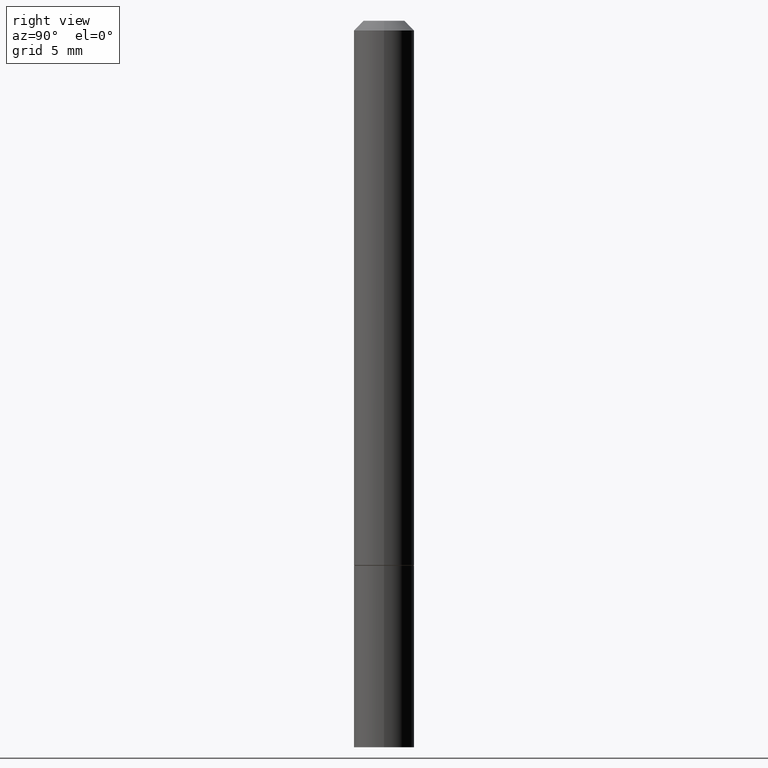
[diagram: clean part render]
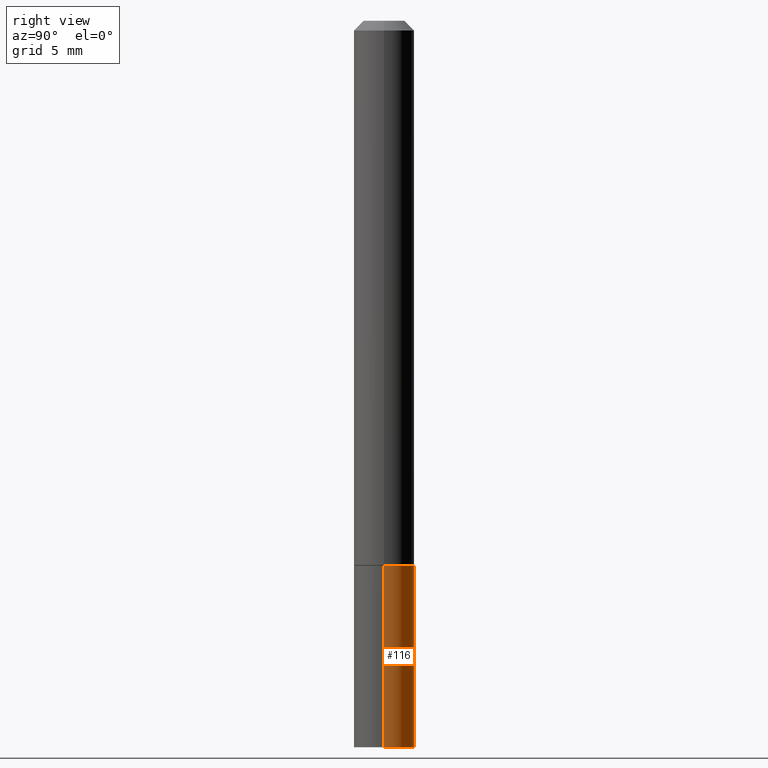
[diagram: same view with one face highlighted and labeled with its STEP entity id]
A machine part, right view. The second image highlights one B-rep face of the part: STEP entity #116.
In plain terms, the highlighted cylindrical surface (edge-blend (fillet) strip) has radius 1.5875 mm, axis along (-0, 0, 1).
Its self-contained STEP definition (entity closure, byte-faithful):
#24 = VERTEX_POINT ( 'NONE', #353 ) ;
#33 = AXIS2_PLACEMENT_3D ( 'NONE', #196, #337, #282 ) ;
#42 = VERTEX_POINT ( 'NONE', #307 ) ;
#51 = VERTEX_POINT ( 'NONE', #140 ) ;
#63 = DIRECTION ( 'NONE',  ( -2.445468806185136877E-29, 3.491481338843145188E-15, 1.000000000000000000 ) ) ;
#89 = VECTOR ( 'NONE', #63, 39.37007874015748143 ) ;
#94 = CARTESIAN_POINT ( 'NONE',  ( 3.668203209277704335E-29, -5.237222008264717388E-15, -1.499999999999999778 ) ) ;
#107 = CIRCLE ( 'NONE', #222, 0.06250000000000001388 ) ;
#114 = FACE_OUTER_BOUND ( 'NONE', #305, .T. ) ;
#116 = ADVANCED_FACE ( 'NONE', ( #114 ), #257, .T. ) ;
#118 = DIRECTION ( 'NONE',  ( 1.000000000000000000, -6.982962677686261189E-15, 0.000000000000000000 ) ) ;
#120 = LINE ( 'NONE', #288, #206 ) ;
#122 = LINE ( 'NONE', #319, #89 ) ;
#140 = CARTESIAN_POINT ( 'NONE',  ( -0.06250000000000001388, -4.138480047381564901E-15, -1.124999999999999778 ) ) ;
#161 = EDGE_CURVE ( 'NONE', #328, #51, #166, .T. ) ;
#165 = ORIENTED_EDGE ( 'NONE', *, *, #240, .T. ) ;
#166 = CIRCLE ( 'NONE', #33, 0.06250000000000001388 ) ;
#174 = ORIENTED_EDGE ( 'NONE', *, *, #161, .F. ) ;
#178 = DIRECTION ( 'NONE',  ( -2.445468806185136877E-29, 3.491481338843145188E-15, 1.000000000000000000 ) ) ;
#188 = ORIENTED_EDGE ( 'NONE', *, *, #241, .F. ) ;
#196 = CARTESIAN_POINT ( 'NONE',  ( 2.751152406958278111E-29, -3.927916506198538435E-15, -1.124999999999999778 ) ) ;
#198 = DIRECTION ( 'NONE',  ( 1.000000000000000000, -6.982962677686267499E-15, 4.876176775795935793E-29 ) ) ;
#206 = VECTOR ( 'NONE', #178, 39.37007874015748143 ) ;
#210 = DIRECTION ( 'NONE',  ( -2.445468806185136597E-29, 3.491481338843145583E-15, 1.000000000000000000 ) ) ;
#222 = AXIS2_PLACEMENT_3D ( 'NONE', #94, #210, #118 ) ;
#226 = CARTESIAN_POINT ( 'NONE',  ( 0.000000000000000000, 0.000000000000000000, 0.000000000000000000 ) ) ;
#232 = AXIS2_PLACEMENT_3D ( 'NONE', #226, #364, #198 ) ;
#240 = EDGE_CURVE ( 'NONE', #24, #51, #120, .T. ) ;
#241 = EDGE_CURVE ( 'NONE', #42, #328, #122, .T. ) ;
#242 = ORIENTED_EDGE ( 'NONE', *, *, #365, .T. ) ;
#257 = CYLINDRICAL_SURFACE ( 'NONE', #232, 0.06250000000000001388 ) ;
#259 = CARTESIAN_POINT ( 'NONE',  ( 0.06250000000000001388, -4.364351673553930105E-15, -1.124999999999999778 ) ) ;
#282 = DIRECTION ( 'NONE',  ( 1.000000000000000000, -6.982962677686269077E-15, 0.000000000000000000 ) ) ;
#288 = CARTESIAN_POINT ( 'NONE',  ( -0.06250000000000001388, 4.440892098500627148E-16, -3.074334431409317165E-30 ) ) ;
#305 = EDGE_LOOP ( 'NONE', ( #242, #165, #174, #188 ) ) ;
#307 = CARTESIAN_POINT ( 'NONE',  ( 0.06250000000000001388, -5.673657175620109057E-15, -1.499999999999999778 ) ) ;
#319 = CARTESIAN_POINT ( 'NONE',  ( 0.06250000000000001388, -4.364351673553918173E-16, 3.047610484872460571E-30 ) ) ;
#328 = VERTEX_POINT ( 'NONE', #259 ) ;
#337 = DIRECTION ( 'NONE',  ( -2.445468806185136597E-29, 3.491481338843145583E-15, 1.000000000000000000 ) ) ;
#353 = CARTESIAN_POINT ( 'NONE',  ( -0.06250000000000001388, -4.138480047381564901E-15, -1.499999999999999778 ) ) ;
#364 = DIRECTION ( 'NONE',  ( -2.445468806185136597E-29, 3.491481338843145583E-15, 1.000000000000000000 ) ) ;
#365 = EDGE_CURVE ( 'NONE', #42, #24, #107, .T. ) ;